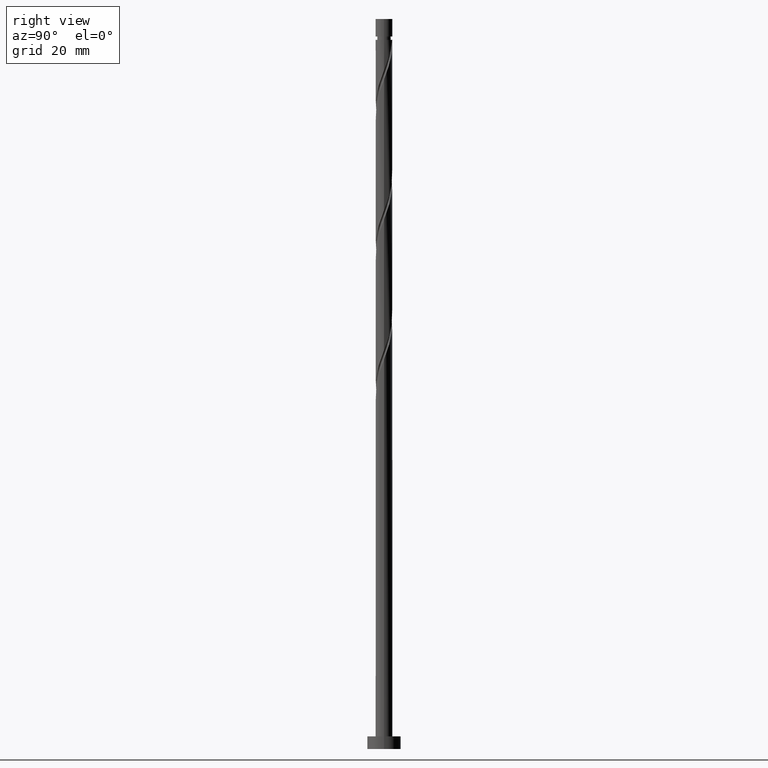
[diagram: clean part render]
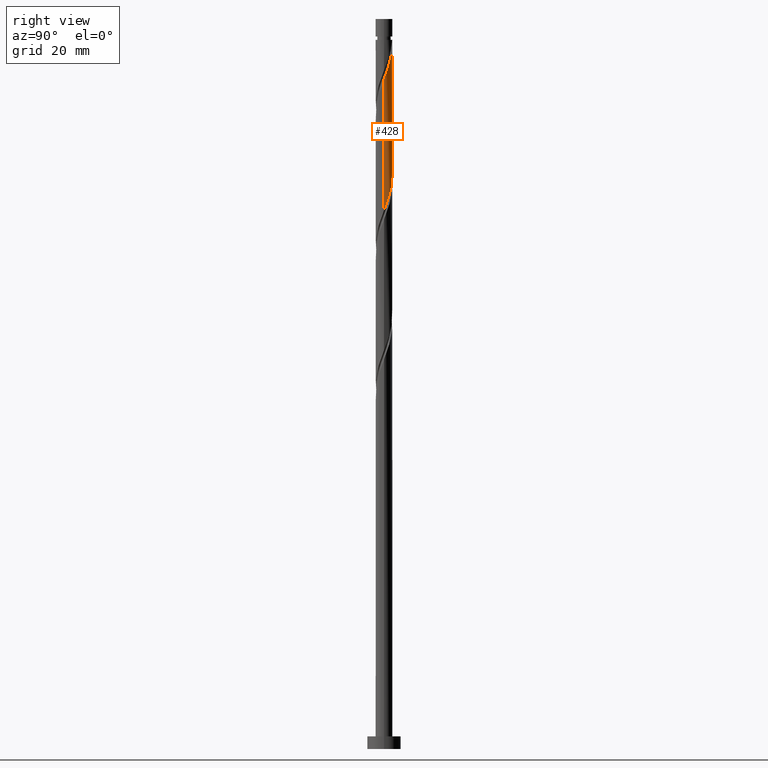
[diagram: same view with one face highlighted and labeled with its STEP entity id]
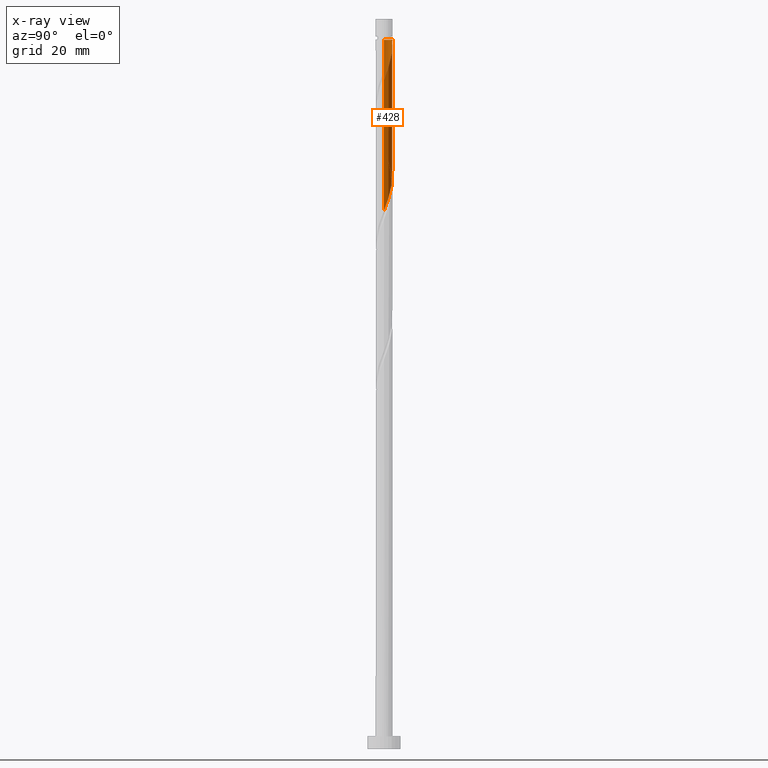
[diagram: x-ray of the same camera — body ghosted, the highlighted face saturated]
A machine part, right view. The second image highlights one B-rep face of the part: STEP entity #428.
The next image is the same camera in x-ray: the body ghosted, the highlighted face saturated — about 0% of this face is hidden behind the body in this view.
In plain terms, the highlighted cylindrical surface (edge-blend (fillet) strip) has radius 2 mm, axis along (-0, -0, -1).
Its self-contained STEP definition (entity closure, byte-faithful):
#13 = CARTESIAN_POINT ( 'NONE',  ( -1.672808912829662820, 1.127404036555501587, 141.7681828523635943 ) ) ;
#30 = CARTESIAN_POINT ( 'NONE',  ( 1.521943481029062628, 1.324015695162686468, 132.0459606301413658 ) ) ;
#40 = CARTESIAN_POINT ( 'NONE',  ( 1.324673758792283218, 1.498412303996174533, 132.7404050745858228 ) ) ;
#42 = CARTESIAN_POINT ( 'NONE',  ( -0.1399560795713508665, 2.012397032465270019, 168.1570717412524516 ) ) ;
#67 = FACE_OUTER_BOUND ( 'NONE', #543, .T. ) ;
#77 = CARTESIAN_POINT ( 'NONE',  ( 1.104504345536228671, 1.667354236715041349, 164.6848495190302799 ) ) ;
#95 = EDGE_CURVE ( 'NONE', #1415, #1181, #281, .T. ) ;
#122 = DIRECTION ( 'NONE',  ( -0.000000000000000000, -0.000000000000000000, -1.000000000000000000 ) ) ;
#139 = CARTESIAN_POINT ( 'NONE',  ( -2.000000000000000000, 0.000000000000000000, 173.8199999999999932 ) ) ;
#153 = VERTEX_POINT ( 'NONE', #1635 ) ;
#181 = CARTESIAN_POINT ( 'NONE',  ( 0.1228517034671602198, 1.996223298870952956, 167.4626272968080514 ) ) ;
#208 = DIRECTION ( 'NONE',  ( -1.000000000000000000, 0.000000000000000000, 0.000000000000000000 ) ) ;
#229 = CARTESIAN_POINT ( 'NONE',  ( 2.000000000000000000, 2.449293598294706414E-16, 173.8199999999999932 ) ) ;
#278 = CARTESIAN_POINT ( 'NONE',  ( -1.498412303996174977, 1.324673758792282552, 141.0737384079191656 ) ) ;
#281 =( BOUNDED_CURVE ( )  B_SPLINE_CURVE ( 2, ( #622, #477, #1414, #751, #1295, #1165, #1690, #892, #77, #630, #665, #1745, #181, #42, #1514 ),
 .UNSPECIFIED., .F., .T. ) 
 B_SPLINE_CURVE_WITH_KNOTS ( ( 3, 2, 2, 2, 2, 2, 2, 3 ),
 ( 0.6795317669814456840, 0.6875000000000000000, 0.6979166666666667407, 0.7083333333333332593, 0.7187500000000000000, 0.7291666666666667407, 0.7395833333333332593, 0.7500000000000000000 ),
 .UNSPECIFIED. ) 
 CURVE ( )  GEOMETRIC_REPRESENTATION_ITEM ( )  RATIONAL_B_SPLINE_CURVE ( ( 0.9062941362546532709, 0.9031415850403567980, 0.9090909090909324863, 0.9013135103398509651, 0.9090909090909324863, 0.9013135103398509651, 0.9090909090909324863, 0.9013135103398509651, 0.9090909090909324863, 0.9013135103398509651, 0.9090909090909324863, 0.9013135103398509651, 0.9090909090909324863, 0.9013135103398509651, 0.9090909090909324863 ) ) 
 REPRESENTATION_ITEM ( '' )  );
#287 = CARTESIAN_POINT ( 'NONE',  ( 0.1399560795713529759, 2.012397032465266911, 136.2126272968080229 ) ) ;
#297 = CARTESIAN_POINT ( 'NONE',  ( 0.000000000000000000, 0.000000000000000000, 168.8515161856969371 ) ) ;
#308 = CARTESIAN_POINT ( 'NONE',  ( -2.000000000000000000, -8.523657132863426313E-16, 144.9150828409069618 ) ) ;
#316 = CARTESIAN_POINT ( 'NONE',  ( 0.6560338701139465378, 1.907602967534731242, 134.8237384079191088 ) ) ;
#407 = CARTESIAN_POINT ( 'NONE',  ( -2.000000000000000000, -8.523657132863426313E-16, 144.9150828409069618 ) ) ;
#418 = DIRECTION ( 'NONE',  ( -1.000000000000000000, 0.000000000000000000, 0.000000000000000000 ) ) ;
#428 = ADVANCED_FACE ( 'NONE', ( #67 ), #880, .T. ) ;
#456 = CARTESIAN_POINT ( 'NONE',  ( -0.3979949748426486189, 1.960000000000002629, 168.8515161856968803 ) ) ;
#477 = CARTESIAN_POINT ( 'NONE',  ( 2.000000000000005329, 0.2010075630518280143, 159.9880425663427559 ) ) ;
#484 = DIRECTION ( 'NONE',  ( -0.000000000000000000, -0.000000000000000000, -1.000000000000000000 ) ) ;
#488 = ORIENTED_EDGE ( 'NONE', *, *, #1269, .F. ) ;
#543 = EDGE_LOOP ( 'NONE', ( #1513, #1641, #488, #1157, #947 ) ) ;
#558 = CARTESIAN_POINT ( 'NONE',  ( -1.907602967534731686, 0.6560338701139447615, 143.1570717412525084 ) ) ;
#584 = CARTESIAN_POINT ( 'NONE',  ( 1.667354236715039795, 1.104504345536226451, 131.3515161856969371 ) ) ;
#622 = CARTESIAN_POINT ( 'NONE',  ( 2.000000000000002665, -2.243067666542991822E-16, 159.4546161971535128 ) ) ;
#630 = CARTESIAN_POINT ( 'NONE',  ( 0.8849929959097678767, 1.812764992401017849, 165.3792939634746801 ) ) ;
#665 = CARTESIAN_POINT ( 'NONE',  ( 0.6353262412077195220, 1.896407278838826649, 166.0737384079191656 ) ) ;
#684 = VERTEX_POINT ( 'NONE', #919 ) ;
#688 = LINE ( 'NONE', #139, #1422 ) ;
#700 = CARTESIAN_POINT ( 'NONE',  ( 1.980049565276632562, 0.3856594865056679478, 129.2681828523635943 ) ) ;
#706 = CARTESIAN_POINT ( 'NONE',  ( -0.6353262412077173016, 1.896407278838824428, 138.2959606301414226 ) ) ;
#724 = CARTESIAN_POINT ( 'NONE',  ( 1.127404036555502920, 1.672808912829662153, 133.4348495190302515 ) ) ;
#751 = CARTESIAN_POINT ( 'NONE',  ( 1.907602967534735461, 0.6560338701139452056, 161.2126272968080514 ) ) ;
#754 = EDGE_CURVE ( 'NONE', #153, #1019, #688, .T. ) ;
#825 = CARTESIAN_POINT ( 'NONE',  ( -0.8849929959097652121, 1.812764992401015407, 138.9904050745858228 ) ) ;
#852 = CARTESIAN_POINT ( 'NONE',  ( -1.999999999999998668, 0.2010075630518495526, 144.3816564717176618 ) ) ;
#880 = CYLINDRICAL_SURFACE ( 'NONE', #1729, 2.000000000000000000 ) ;
#892 = CARTESIAN_POINT ( 'NONE',  ( 1.324015695162691575, 1.521943481029063294, 163.9904050745858228 ) ) ;
#919 = CARTESIAN_POINT ( 'NONE',  ( 2.000000000000000000, 2.459897540975497552E-15, 128.2484161742403614 ) ) ;
#947 = ORIENTED_EDGE ( 'NONE', *, *, #1184, .T. ) ;
#973 = CARTESIAN_POINT ( 'NONE',  ( 0.8917189533347246178, 1.790205940182196809, 134.1292939634747370 ) ) ;
#1001 = CARTESIAN_POINT ( 'NONE',  ( 2.000000000000000444, 0.06148390331534440978, 128.4115798622684963 ) ) ;
#1019 = VERTEX_POINT ( 'NONE', #407 ) ;
#1111 = CARTESIAN_POINT ( 'NONE',  ( -1.790205940182197253, 0.8917189533347235075, 142.4626272968080798 ) ) ;
#1134 = CARTESIAN_POINT ( 'NONE',  ( -0.1228517034671581382, 1.996223298870949847, 136.9070717412525369 ) ) ;
#1157 = ORIENTED_EDGE ( 'NONE', *, *, #754, .F. ) ;
#1165 = CARTESIAN_POINT ( 'NONE',  ( 1.672808912829666150, 1.127404036555501810, 162.6015161856968803 ) ) ;
#1181 = VERTEX_POINT ( 'NONE', #456 ) ;
#1184 = EDGE_CURVE ( 'NONE', #153, #1181, #1244, .T. ) ;
#1244 = CIRCLE ( 'NONE', #1344, 1.999999999999991340 ) ;
#1257 = CARTESIAN_POINT ( 'NONE',  ( 0.3979949748426492850, 1.959999999999999520, 135.5181828523636511 ) ) ;
#1269 = EDGE_CURVE ( 'NONE', #1019, #684, #1491, .T. ) ;
#1295 = CARTESIAN_POINT ( 'NONE',  ( 1.790205940182201028, 0.8917189533347233965, 161.9070717412524800 ) ) ;
#1344 = AXIS2_PLACEMENT_3D ( 'NONE', #297, #1510, #418 ) ;
#1362 = CARTESIAN_POINT ( 'NONE',  ( 1.812764992401016073, 0.8849929959097638799, 130.6570717412524800 ) ) ;
#1391 = CARTESIAN_POINT ( 'NONE',  ( 1.996223298870950735, 0.1228517034671572083, 128.5737384079191941 ) ) ;
#1414 = CARTESIAN_POINT ( 'NONE',  ( 1.960000000000002629, 0.3979949748426486744, 160.5181828523636227 ) ) ;
#1415 = VERTEX_POINT ( 'NONE', #1545 ) ;
#1422 = VECTOR ( 'NONE', #122, 1000.000000000000000 ) ;
#1491 =( BOUNDED_CURVE ( )  B_SPLINE_CURVE ( 2, ( #308, #852, #1492, #558, #1111, #13, #278, #1661, #1624, #825, #706, #1640, #1134, #287, #1257, #316, #973, #724, #40, #30, #584, #1362, #1649, #700, #1391, #1001, #1527 ),
 .UNSPECIFIED., .F., .T. ) 
 B_SPLINE_CURVE_WITH_KNOTS ( ( 3, 2, 2, 2, 2, 2, 2, 2, 2, 2, 2, 2, 2, 3 ),
 ( 0.4295317669814465167, 0.4375000000000000000, 0.4479166666666666852, 0.4583333333333333148, 0.4687500000000000000, 0.4791666666666666852, 0.4895833333333333148, 0.5000000000000000000, 0.5104166666666666297, 0.5208333333333333703, 0.5312500000000000000, 0.5416666666666666297, 0.5520833333333333703, 0.5545317669814463502 ),
 .UNSPECIFIED. ) 
 CURVE ( )  GEOMETRIC_REPRESENTATION_ITEM ( )  RATIONAL_B_SPLINE_CURVE ( ( 0.9062941362546468316, 0.9031415850403513579, 0.9090909090909264911, 0.9013135103398449699, 0.9090909090909264911, 0.9013135103398449699, 0.9090909090909264911, 0.9013135103398449699, 0.9090909090909264911, 0.9013135103398449699, 0.9090909090909264911, 0.9013135103398449699, 0.9090909090909264911, 0.9013135103398449699, 0.9090909090909264911, 0.9013135103398449699, 0.9090909090909264911, 0.9013135103398449699, 0.9090909090909264911, 0.9013135103398449699, 0.9090909090909264911, 0.9013135103398449699, 0.9090909090909264911, 0.9013135103398449699, 0.9090909090909264911, 0.9072628343904202142, 0.9062941362546468316 ) ) 
 REPRESENTATION_ITEM ( '' )  );
#1492 = CARTESIAN_POINT ( 'NONE',  ( -1.959999999999999520, 0.3979949748426487854, 143.8515161856969655 ) ) ;
#1510 = DIRECTION ( 'NONE',  ( -0.000000000000000000, -0.000000000000000000, -1.000000000000000000 ) ) ;
#1513 = ORIENTED_EDGE ( 'NONE', *, *, #95, .F. ) ;
#1514 = CARTESIAN_POINT ( 'NONE',  ( -0.3979949748426486189, 1.960000000000002629, 168.8515161856968803 ) ) ;
#1527 = CARTESIAN_POINT ( 'NONE',  ( 2.000000000000000000, 2.459897540975497552E-15, 128.2484161742403614 ) ) ;
#1541 = VECTOR ( 'NONE', #1611, 1000.000000000000000 ) ;
#1545 = CARTESIAN_POINT ( 'NONE',  ( 2.000000000000002665, -2.243067666542991822E-16, 159.4546161971535128 ) ) ;
#1557 = EDGE_CURVE ( 'NONE', #1415, #684, #1706, .T. ) ;
#1611 = DIRECTION ( 'NONE',  ( -0.000000000000000000, -0.000000000000000000, -1.000000000000000000 ) ) ;
#1624 = CARTESIAN_POINT ( 'NONE',  ( -1.104504345536226673, 1.667354236715039573, 139.6848495190302515 ) ) ;
#1635 = CARTESIAN_POINT ( 'NONE',  ( -1.999999999999991340, 0.000000000000000000, 168.8515161856969371 ) ) ;
#1640 = CARTESIAN_POINT ( 'NONE',  ( -0.3856594865056692245, 1.980049565276631895, 137.6015161856968803 ) ) ;
#1641 = ORIENTED_EDGE ( 'NONE', *, *, #1557, .T. ) ;
#1649 = CARTESIAN_POINT ( 'NONE',  ( 1.896407278838824872, 0.6353262412077160803, 129.9626272968080514 ) ) ;
#1661 = CARTESIAN_POINT ( 'NONE',  ( -1.324015695162687356, 1.521943481029062406, 140.3792939634747086 ) ) ;
#1681 = CARTESIAN_POINT ( 'NONE',  ( 0.000000000000000000, 0.000000000000000000, 173.8199999999999932 ) ) ;
#1690 = CARTESIAN_POINT ( 'NONE',  ( 1.498412303996178752, 1.324673758792282774, 163.2959606301413658 ) ) ;
#1706 = LINE ( 'NONE', #229, #1541 ) ;
#1729 = AXIS2_PLACEMENT_3D ( 'NONE', #1681, #484, #208 ) ;
#1745 = CARTESIAN_POINT ( 'NONE',  ( 0.3856594865056713894, 1.980049565276635670, 166.7681828523636227 ) ) ;